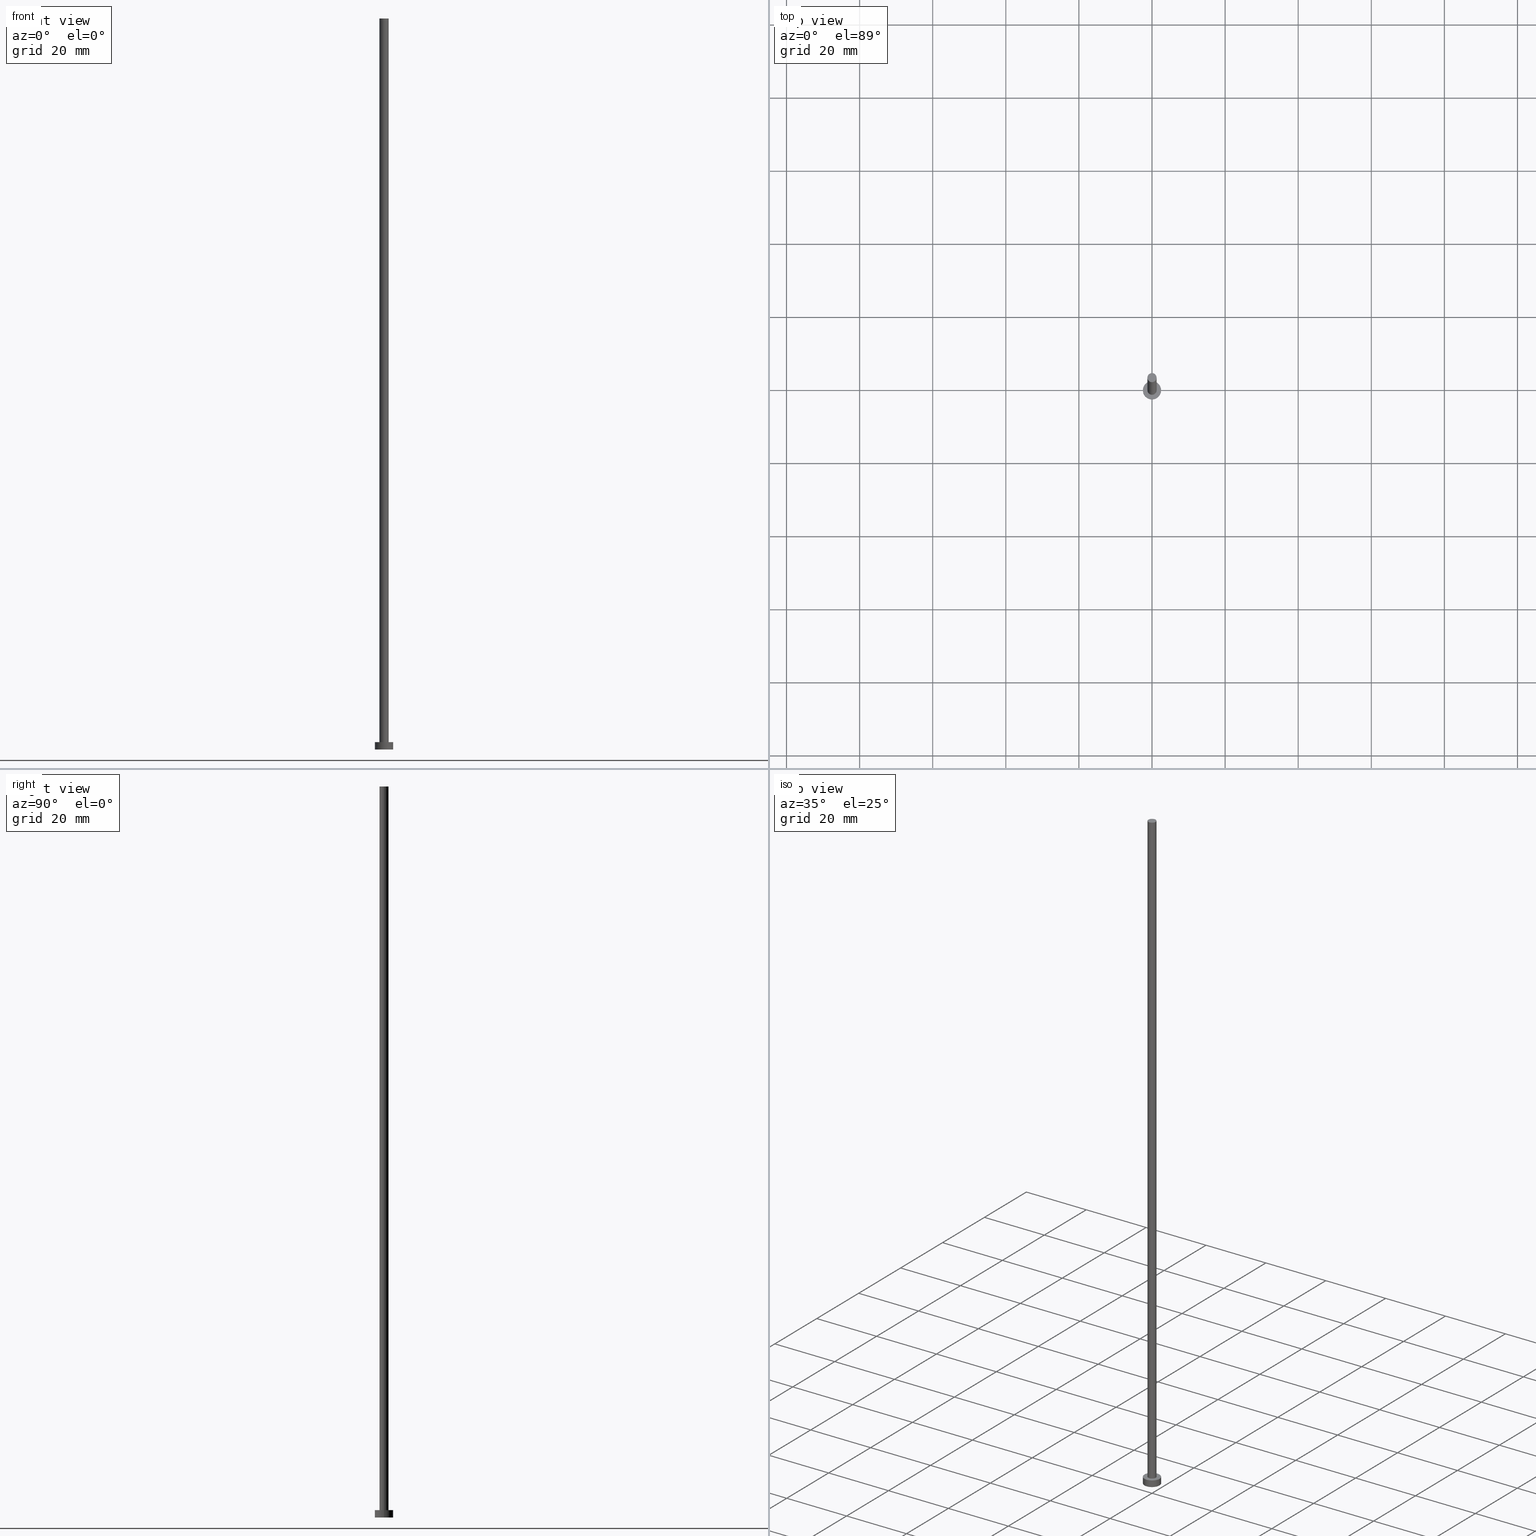
[diagram: canonical four-view strip — front | top / right | iso, engineering-drawing reading convention]
A machine part, canonical four-view strip (front | top / right | iso — engineering-drawing reading convention). The complete STEP part file that produces these views, byte-faithful:
ISO-10303-21;
HEADER;
FILE_DESCRIPTION (( 'STEP AP203' ),
    '1' );
FILE_NAME ('91fc.STEP',
    '2023-02-12T12:49:01',
    ( '' ),
    ( '' ),
    'SwSTEP 2.0',
    'SolidWorks 2019',
    '' );
FILE_SCHEMA (( 'CONFIG_CONTROL_DESIGN' ));
ENDSEC;

DATA;
#1 = FACE_OUTER_BOUND ( 'NONE', #244, .T. ) ;
#2 = DIRECTION ( 'NONE',  ( -0.000000000000000000, -0.000000000000000000, -1.000000000000000000 ) ) ;
#3 = EDGE_CURVE ( 'NONE', #64, #211, #72, .T. ) ;
#4 = LOCAL_TIME ( 13, 49, 1.000000000000000000, #207 ) ;
#5 = ORIENTED_EDGE ( 'NONE', *, *, #141, .T. ) ;
#6 = ORIENTED_EDGE ( 'NONE', *, *, #215, .T. ) ;
#7 = CC_DESIGN_PERSON_AND_ORGANIZATION_ASSIGNMENT ( #137, #113, ( #219 ) ) ;
#8 = COORDINATED_UNIVERSAL_TIME_OFFSET ( 1, 0, .AHEAD. ) ;
#9 = CIRCLE ( 'NONE', #143, 2.500000000000000000 ) ;
#10 = COORDINATED_UNIVERSAL_TIME_OFFSET ( 1, 0, .AHEAD. ) ;
#11 = ORIENTED_EDGE ( 'NONE', *, *, #119, .T. ) ;
#12 = DIRECTION ( 'NONE',  ( 0.000000000000000000, 0.000000000000000000, 1.000000000000000000 ) ) ;
#13 = APPLICATION_PROTOCOL_DEFINITION ( 'international standard', 'config_control_design', 1994, #56 ) ;
#14 = DIRECTION ( 'NONE',  ( 1.000000000000000000, 0.000000000000000000, 0.000000000000000000 ) ) ;
#15 = CC_DESIGN_PERSON_AND_ORGANIZATION_ASSIGNMENT ( #200, #115, ( #219 ) ) ;
#16 = DIRECTION ( 'NONE',  ( 0.000000000000000000, 0.000000000000000000, 1.000000000000000000 ) ) ;
#17 = DATE_TIME_ROLE ( 'creation_date' ) ;
#18 = PERSON_AND_ORGANIZATION ( #166, #79 ) ;
#19 = APPROVAL ( #48, 'NEUR�EN�' ) ;
#20 = AXIS2_PLACEMENT_3D ( 'NONE', #153, #192, #40 ) ;
#21 = ORIENTED_EDGE ( 'NONE', *, *, #39, .T. ) ;
#22 = AXIS2_PLACEMENT_3D ( 'NONE', #67, #198, #26 ) ;
#23 = EDGE_CURVE ( 'NONE', #211, #202, #217, .T. ) ;
#24 = ORIENTED_EDGE ( 'NONE', *, *, #3, .T. ) ;
#25 = CARTESIAN_POINT ( 'NONE',  ( 1.250000000000000000, 1.530808498934191571E-16, 200.0000000000000000 ) ) ;
#26 = DIRECTION ( 'NONE',  ( 1.000000000000000000, 0.000000000000000000, 0.000000000000000000 ) ) ;
#27 = AXIS2_PLACEMENT_3D ( 'NONE', #188, #63, #133 ) ;
#28 = EDGE_LOOP ( 'NONE', ( #174, #81 ) ) ;
#29 = APPLICATION_PROTOCOL_DEFINITION ( 'international standard', 'config_control_design', 1994, #69 ) ;
#30 = ORIENTED_EDGE ( 'NONE', *, *, #128, .F. ) ;
#31 = CARTESIAN_POINT ( 'NONE',  ( 0.000000000000000000, 0.000000000000000000, 2.000000000000000000 ) ) ;
#32 = CALENDAR_DATE ( 2023, 12, 2 ) ;
#33 = CARTESIAN_POINT ( 'NONE',  ( 0.000000000000000000, 0.000000000000000000, 200.0000000000000000 ) ) ;
#34 = LOCAL_TIME ( 13, 49, 1.000000000000000000, #185 ) ;
#35 = MANIFOLD_SOLID_BREP ( 'P�idat vysunut�m3', #156 ) ;
#36 = DATE_AND_TIME ( #205, #34 ) ;
#37 = CALENDAR_DATE ( 2023, 12, 2 ) ;
#38 = AXIS2_PLACEMENT_3D ( 'NONE', #148, #2, #187 ) ;
#39 = EDGE_CURVE ( 'NONE', #161, #58, #71, .T. ) ;
#40 = DIRECTION ( 'NONE',  ( -1.000000000000000000, 0.000000000000000000, 0.000000000000000000 ) ) ;
#41 = FACE_BOUND ( 'NONE', #28, .T. ) ;
#42 = CC_DESIGN_DATE_AND_TIME_ASSIGNMENT ( #230, #168, ( #157 ) ) ;
#43 = FACE_OUTER_BOUND ( 'NONE', #80, .T. ) ;
#44 = CARTESIAN_POINT ( 'NONE',  ( 2.500000000000000000, 3.061616997868383141E-16, 0.000000000000000000 ) ) ;
#45 = CC_DESIGN_APPROVAL ( #197, ( #157 ) ) ;
#46 = FACE_OUTER_BOUND ( 'NONE', #112, .T. ) ;
#47 = ORIENTED_EDGE ( 'NONE', *, *, #23, .F. ) ;
#48 = APPROVAL_STATUS ( 'not_yet_approved' ) ;
#49 = CYLINDRICAL_SURFACE ( 'NONE', #234, 1.250000000000000000 ) ;
#50 = CC_DESIGN_PERSON_AND_ORGANIZATION_ASSIGNMENT ( #165, #104, ( #97 ) ) ;
#51 = CALENDAR_DATE ( 2023, 12, 2 ) ;
#52 = LOCAL_TIME ( 13, 49, 1.000000000000000000, #251 ) ;
#53 = APPROVAL ( #142, 'NEUR�EN�' ) ;
#54 = CC_DESIGN_SECURITY_CLASSIFICATION ( #157, ( #219 ) ) ;
#55 = VERTEX_POINT ( 'NONE', #178 ) ;
#56 = APPLICATION_CONTEXT ( 'configuration controlled 3d designs of mechanical parts and assemblies' ) ;
#57 = AXIS2_PLACEMENT_3D ( 'NONE', #170, #255, #110 ) ;
#58 = VERTEX_POINT ( 'NONE', #125 ) ;
#59 = ORIENTED_EDGE ( 'NONE', *, *, #23, .T. ) ;
#60 = EDGE_LOOP ( 'NONE', ( #208, #47 ) ) ;
#61 = CARTESIAN_POINT ( 'NONE',  ( 0.000000000000000000, 0.000000000000000000, 2.000000000000000000 ) ) ;
#62 = DIRECTION ( 'NONE',  ( 0.000000000000000000, 0.000000000000000000, 1.000000000000000000 ) ) ;
#63 = DIRECTION ( 'NONE',  ( 0.000000000000000000, 0.000000000000000000, 1.000000000000000000 ) ) ;
#64 = VERTEX_POINT ( 'NONE', #86 ) ;
#65 = LINE ( 'NONE', #25, #196 ) ;
#66 = DIRECTION ( 'NONE',  ( 1.000000000000000000, 0.000000000000000000, 0.000000000000000000 ) ) ;
#67 = CARTESIAN_POINT ( 'NONE',  ( 0.000000000000000000, 0.000000000000000000, 0.000000000000000000 ) ) ;
#68 = DIRECTION ( 'NONE',  ( 1.000000000000000000, 0.000000000000000000, 0.000000000000000000 ) ) ;
#69 = APPLICATION_CONTEXT ( 'configuration controlled 3d designs of mechanical parts and assemblies' ) ;
#70 = CALENDAR_DATE ( 2023, 12, 2 ) ;
#71 = CIRCLE ( 'NONE', #57, 1.250000000000000000 ) ;
#72 = LINE ( 'NONE', #91, #132 ) ;
#73 = SECURITY_CLASSIFICATION_LEVEL ( 'unclassified' ) ;
#74 = UNCERTAINTY_MEASURE_WITH_UNIT (LENGTH_MEASURE( 1.000000000000000082E-05 ), #160, 'distance_accuracy_value', 'NONE');
#75 = EDGE_CURVE ( 'NONE', #64, #135, #9, .T. ) ;
#76 = CARTESIAN_POINT ( 'NONE',  ( 0.000000000000000000, 0.000000000000000000, 0.000000000000000000 ) ) ;
#77 = CARTESIAN_POINT ( 'NONE',  ( -1.250000000000000000, 0.000000000000000000, 200.0000000000000000 ) ) ;
#78 = ORIENTED_EDGE ( 'NONE', *, *, #99, .T. ) ;
#79 = ORGANIZATION ( 'NEUR�EN�', 'NEUR�EN�', '' ) ;
#80 = EDGE_LOOP ( 'NONE', ( #180, #24, #59, #95 ) ) ;
#81 = ORIENTED_EDGE ( 'NONE', *, *, #134, .F. ) ;
#82 = ORIENTED_EDGE ( 'NONE', *, *, #134, .T. ) ;
#83 = DATE_AND_TIME ( #32, #171 ) ;
#84 = CC_DESIGN_DATE_AND_TIME_ASSIGNMENT ( #83, #17, ( #97 ) ) ;
#85 = ORIENTED_EDGE ( 'NONE', *, *, #75, .T. ) ;
#86 = CARTESIAN_POINT ( 'NONE',  ( 2.500000000000000000, 3.061616997868383141E-16, 2.000000000000000000 ) ) ;
#87 = APPROVAL_ROLE ( '' ) ;
#88 = APPROVAL_DATE_TIME ( #36, #53 ) ;
#89 = AXIS2_PLACEMENT_3D ( 'NONE', #31, #16, #68 ) ;
#90 = VECTOR ( 'NONE', #181, 1000.000000000000000 ) ;
#91 = CARTESIAN_POINT ( 'NONE',  ( 2.500000000000000000, 3.061616997868383141E-16, 2.000000000000000000 ) ) ;
#92 = EDGE_CURVE ( 'NONE', #55, #151, #237, .T. ) ;
#93 = ORIENTED_EDGE ( 'NONE', *, *, #128, .T. ) ;
#94 = AXIS2_PLACEMENT_3D ( 'NONE', #109, #235, #253 ) ;
#95 = ORIENTED_EDGE ( 'NONE', *, *, #215, .F. ) ;
#96 = CARTESIAN_POINT ( 'NONE',  ( 1.250000000000000000, 1.530808498934191571E-16, 2.000000000000000000 ) ) ;
#97 = PRODUCT_DEFINITION ( 'NEZN�M�', '', #219, #227 ) ;
#98 = PLANE ( 'NONE',  #122 ) ;
#99 = EDGE_CURVE ( 'NONE', #58, #151, #65, .T. ) ;
#100 = CARTESIAN_POINT ( 'NONE',  ( -1.250000000000000000, 0.000000000000000000, 200.0000000000000000 ) ) ;
#101 = ORIENTED_EDGE ( 'NONE', *, *, #39, .F. ) ;
#102 = CARTESIAN_POINT ( 'NONE',  ( 0.000000000000000000, 0.000000000000000000, 2.000000000000000000 ) ) ;
#103 = AXIS2_PLACEMENT_3D ( 'NONE', #61, #223, #116 ) ;
#104 = PERSON_AND_ORGANIZATION_ROLE ( 'creator' ) ;
#105 = DIRECTION ( 'NONE',  ( -0.000000000000000000, -0.000000000000000000, -1.000000000000000000 ) ) ;
#106 = AXIS2_PLACEMENT_3D ( 'NONE', #76, #248, #190 ) ;
#107 = CC_DESIGN_APPROVAL ( #19, ( #219 ) ) ;
#108 = CYLINDRICAL_SURFACE ( 'NONE', #94, 2.500000000000000000 ) ;
#109 = CARTESIAN_POINT ( 'NONE',  ( 0.000000000000000000, 0.000000000000000000, 2.000000000000000000 ) ) ;
#110 = DIRECTION ( 'NONE',  ( 1.000000000000000000, 0.000000000000000000, 0.000000000000000000 ) ) ;
#111 = CARTESIAN_POINT ( 'NONE',  ( -2.500000000000000000, 0.000000000000000000, 2.000000000000000000 ) ) ;
#112 = EDGE_LOOP ( 'NONE', ( #131, #78, #82, #194 ) ) ;
#113 = PERSON_AND_ORGANIZATION_ROLE ( 'creator' ) ;
#114 = DIRECTION ( 'NONE',  ( 1.000000000000000000, 0.000000000000000000, 0.000000000000000000 ) ) ;
#115 = PERSON_AND_ORGANIZATION_ROLE ( 'design_supplier' ) ;
#116 = DIRECTION ( 'NONE',  ( 1.000000000000000000, 0.000000000000000000, -0.000000000000000000 ) ) ;
#117 = CIRCLE ( 'NONE', #177, 2.500000000000000000 ) ;
#118 = APPROVAL_ROLE ( '' ) ;
#119 = EDGE_CURVE ( 'NONE', #161, #55, #140, .T. ) ;
#120 = SHAPE_DEFINITION_REPRESENTATION ( #247, #221 ) ;
#121 = PERSON_AND_ORGANIZATION ( #166, #79 ) ;
#122 = AXIS2_PLACEMENT_3D ( 'NONE', #250, #212, #175 ) ;
#123 = LOCAL_TIME ( 13, 49, 1.000000000000000000, #8 ) ;
#124 = AXIS2_PLACEMENT_3D ( 'NONE', #102, #241, #14 ) ;
#125 = CARTESIAN_POINT ( 'NONE',  ( 1.250000000000000000, 1.530808498934191571E-16, 200.0000000000000000 ) ) ;
#126 = PLANE ( 'NONE',  #103 ) ;
#127 = DIRECTION ( 'NONE',  ( 1.000000000000000000, 0.000000000000000000, 0.000000000000000000 ) ) ;
#128 = EDGE_CURVE ( 'NONE', #135, #64, #117, .T. ) ;
#129 = FACE_OUTER_BOUND ( 'NONE', #216, .T. ) ;
#130 = DIRECTION ( 'NONE',  ( 1.000000000000000000, 0.000000000000000000, -0.000000000000000000 ) ) ;
#131 = ORIENTED_EDGE ( 'NONE', *, *, #199, .F. ) ;
#132 = VECTOR ( 'NONE', #233, 1000.000000000000000 ) ;
#133 = DIRECTION ( 'NONE',  ( 1.000000000000000000, 0.000000000000000000, 0.000000000000000000 ) ) ;
#134 = EDGE_CURVE ( 'NONE', #151, #55, #164, .T. ) ;
#135 = VERTEX_POINT ( 'NONE', #228 ) ;
#136 =( NAMED_UNIT ( * ) SI_UNIT ( $, .STERADIAN. ) SOLID_ANGLE_UNIT ( ) );
#137 = PERSON_AND_ORGANIZATION ( #166, #79 ) ;
#138 = PERSON_AND_ORGANIZATION ( #166, #79 ) ;
#139 = APPROVAL_PERSON_ORGANIZATION ( #18, #197, #210 ) ;
#140 = LINE ( 'NONE', #100, #90 ) ;
#141 = EDGE_CURVE ( 'NONE', #202, #211, #150, .T. ) ;
#142 = APPROVAL_STATUS ( 'not_yet_approved' ) ;
#143 = AXIS2_PLACEMENT_3D ( 'NONE', #242, #158, #114 ) ;
#144 = VECTOR ( 'NONE', #193, 1000.000000000000000 ) ;
#145 = APPROVAL_STATUS ( 'not_yet_approved' ) ;
#146 = DIRECTION ( 'NONE',  ( -1.000000000000000000, 0.000000000000000000, 0.000000000000000000 ) ) ;
#147 = ADVANCED_FACE ( 'NONE', ( #179 ), #209, .T. ) ;
#148 = CARTESIAN_POINT ( 'NONE',  ( 0.000000000000000000, 0.000000000000000000, 2.000000000000000000 ) ) ;
#149 = PRODUCT_RELATED_PRODUCT_CATEGORY ( 'detail', '', ( #203 ) ) ;
#150 = CIRCLE ( 'NONE', #106, 2.500000000000000000 ) ;
#151 = VERTEX_POINT ( 'NONE', #96 ) ;
#152 = CIRCLE ( 'NONE', #27, 1.250000000000000000 ) ;
#153 = CARTESIAN_POINT ( 'NONE',  ( 0.000000000000000000, 0.000000000000000000, 200.0000000000000000 ) ) ;
#154 = ORIENTED_EDGE ( 'NONE', *, *, #3, .F. ) ;
#155 = ORIENTED_EDGE ( 'NONE', *, *, #92, .T. ) ;
#156 = CLOSED_SHELL ( 'NONE', ( #173, #167, #147, #169, #162, #186, #206 ) ) ;
#157 = SECURITY_CLASSIFICATION ( '', '', #73 ) ;
#158 = DIRECTION ( 'NONE',  ( 0.000000000000000000, 0.000000000000000000, 1.000000000000000000 ) ) ;
#159 =( NAMED_UNIT ( * ) PLANE_ANGLE_UNIT ( ) SI_UNIT ( $, .RADIAN. ) );
#160 =( LENGTH_UNIT ( ) NAMED_UNIT ( * ) SI_UNIT ( .MILLI., .METRE. ) );
#161 = VERTEX_POINT ( 'NONE', #77 ) ;
#162 = ADVANCED_FACE ( 'NONE', ( #254 ), #98, .F. ) ;
#163 = DIRECTION ( 'NONE',  ( -0.000000000000000000, -0.000000000000000000, -1.000000000000000000 ) ) ;
#164 = CIRCLE ( 'NONE', #89, 1.250000000000000000 ) ;
#165 = PERSON_AND_ORGANIZATION ( #166, #79 ) ;
#166 = PERSON ( 'NEUR�EN�', 'NEUR�EN�', 'NEUR�EN�', ('NEUR�EN�'), ('NEUR�EN�'), ('NEUR�EN�') ) ;
#167 = ADVANCED_FACE ( 'NONE', ( #43 ), #108, .T. ) ;
#168 = DATE_TIME_ROLE ( 'classification_date' ) ;
#169 = ADVANCED_FACE ( 'NONE', ( #41, #1 ), #126, .T. ) ;
#170 = CARTESIAN_POINT ( 'NONE',  ( 0.000000000000000000, 0.000000000000000000, 200.0000000000000000 ) ) ;
#171 = LOCAL_TIME ( 13, 49, 1.000000000000000000, #10 ) ;
#172 = CC_DESIGN_PERSON_AND_ORGANIZATION_ASSIGNMENT ( #218, #183, ( #203 ) ) ;
#173 = ADVANCED_FACE ( 'NONE', ( #46 ), #49, .T. ) ;
#174 = ORIENTED_EDGE ( 'NONE', *, *, #92, .F. ) ;
#175 = DIRECTION ( 'NONE',  ( 1.000000000000000000, 0.000000000000000000, -0.000000000000000000 ) ) ;
#176 = CARTESIAN_POINT ( 'NONE',  ( -2.500000000000000000, 0.000000000000000000, 0.000000000000000000 ) ) ;
#177 = AXIS2_PLACEMENT_3D ( 'NONE', #245, #12, #66 ) ;
#178 = CARTESIAN_POINT ( 'NONE',  ( -1.250000000000000000, 0.000000000000000000, 2.000000000000000000 ) ) ;
#179 = FACE_OUTER_BOUND ( 'NONE', #238, .T. ) ;
#180 = ORIENTED_EDGE ( 'NONE', *, *, #75, .F. ) ;
#181 = DIRECTION ( 'NONE',  ( -0.000000000000000000, -0.000000000000000000, -1.000000000000000000 ) ) ;
#182 = PERSON_AND_ORGANIZATION ( #166, #79 ) ;
#183 = PERSON_AND_ORGANIZATION_ROLE ( 'design_owner' ) ;
#184 = DATE_AND_TIME ( #37, #52 ) ;
#185 = COORDINATED_UNIVERSAL_TIME_OFFSET ( 1, 0, .AHEAD. ) ;
#186 = ADVANCED_FACE ( 'NONE', ( #252 ), #225, .T. ) ;
#187 = DIRECTION ( 'NONE',  ( -1.000000000000000000, 0.000000000000000000, 0.000000000000000000 ) ) ;
#188 = CARTESIAN_POINT ( 'NONE',  ( 0.000000000000000000, 0.000000000000000000, 200.0000000000000000 ) ) ;
#189 = DIRECTION ( 'NONE',  ( 0.000000000000000000, 0.000000000000000000, 1.000000000000000000 ) ) ;
#190 = DIRECTION ( 'NONE',  ( 1.000000000000000000, 0.000000000000000000, 0.000000000000000000 ) ) ;
#191 = PLANE ( 'NONE',  #249 ) ;
#192 = DIRECTION ( 'NONE',  ( -0.000000000000000000, -0.000000000000000000, -1.000000000000000000 ) ) ;
#193 = DIRECTION ( 'NONE',  ( -0.000000000000000000, -0.000000000000000000, -1.000000000000000000 ) ) ;
#194 = ORIENTED_EDGE ( 'NONE', *, *, #119, .F. ) ;
#195 = ORIENTED_EDGE ( 'NONE', *, *, #199, .T. ) ;
#196 = VECTOR ( 'NONE', #163, 1000.000000000000000 ) ;
#197 = APPROVAL ( #145, 'NEUR�EN�' ) ;
#198 = DIRECTION ( 'NONE',  ( 0.000000000000000000, 0.000000000000000000, 1.000000000000000000 ) ) ;
#199 = EDGE_CURVE ( 'NONE', #58, #161, #152, .T. ) ;
#200 = PERSON_AND_ORGANIZATION ( #166, #79 ) ;
#201 =( GEOMETRIC_REPRESENTATION_CONTEXT ( 3 ) GLOBAL_UNCERTAINTY_ASSIGNED_CONTEXT ( ( #74 ) ) GLOBAL_UNIT_ASSIGNED_CONTEXT ( ( #160, #159, #136 ) ) REPRESENTATION_CONTEXT ( 'NONE', 'WORKASPACE' ) );
#202 = VERTEX_POINT ( 'NONE', #176 ) ;
#203 = PRODUCT ( '91fc', '91fc', '', ( #243 ) ) ;
#204 = APPROVAL_PERSON_ORGANIZATION ( #138, #19, #87 ) ;
#205 = CALENDAR_DATE ( 2023, 12, 2 ) ;
#206 = ADVANCED_FACE ( 'NONE', ( #129 ), #191, .T. ) ;
#207 = COORDINATED_UNIVERSAL_TIME_OFFSET ( 1, 0, .AHEAD. ) ;
#208 = ORIENTED_EDGE ( 'NONE', *, *, #141, .F. ) ;
#209 = CYLINDRICAL_SURFACE ( 'NONE', #38, 2.500000000000000000 ) ;
#210 = APPROVAL_ROLE ( '' ) ;
#211 = VERTEX_POINT ( 'NONE', #44 ) ;
#212 = DIRECTION ( 'NONE',  ( 0.000000000000000000, 0.000000000000000000, 1.000000000000000000 ) ) ;
#213 = LINE ( 'NONE', #111, #144 ) ;
#214 = ORIENTED_EDGE ( 'NONE', *, *, #99, .F. ) ;
#215 = EDGE_CURVE ( 'NONE', #135, #202, #213, .T. ) ;
#216 = EDGE_LOOP ( 'NONE', ( #21, #195 ) ) ;
#217 = CIRCLE ( 'NONE', #224, 2.500000000000000000 ) ;
#218 = PERSON_AND_ORGANIZATION ( #166, #79 ) ;
#219 = PRODUCT_DEFINITION_FORMATION_WITH_SPECIFIED_SOURCE ( 'LIBOVOLN�', '', #203, .NOT_KNOWN. ) ;
#220 = APPROVAL_PERSON_ORGANIZATION ( #182, #53, #118 ) ;
#221 = ADVANCED_BREP_SHAPE_REPRESENTATION ( '91fc', ( #35, #22 ), #201 ) ;
#222 = DATE_AND_TIME ( #70, #123 ) ;
#223 = DIRECTION ( 'NONE',  ( 0.000000000000000000, 0.000000000000000000, 1.000000000000000000 ) ) ;
#224 = AXIS2_PLACEMENT_3D ( 'NONE', #231, #189, #127 ) ;
#225 = CYLINDRICAL_SURFACE ( 'NONE', #20, 1.250000000000000000 ) ;
#226 = PERSON_AND_ORGANIZATION_ROLE ( 'classification_officer' ) ;
#227 = DESIGN_CONTEXT ( 'detailed design', #69, 'design' ) ;
#228 = CARTESIAN_POINT ( 'NONE',  ( -2.500000000000000000, 0.000000000000000000, 2.000000000000000000 ) ) ;
#229 = APPROVAL_DATE_TIME ( #184, #197 ) ;
#230 = DATE_AND_TIME ( #51, #4 ) ;
#231 = CARTESIAN_POINT ( 'NONE',  ( 0.000000000000000000, 0.000000000000000000, 0.000000000000000000 ) ) ;
#232 = EDGE_LOOP ( 'NONE', ( #214, #101, #11, #155 ) ) ;
#233 = DIRECTION ( 'NONE',  ( -0.000000000000000000, -0.000000000000000000, -1.000000000000000000 ) ) ;
#234 = AXIS2_PLACEMENT_3D ( 'NONE', #33, #105, #146 ) ;
#235 = DIRECTION ( 'NONE',  ( -0.000000000000000000, -0.000000000000000000, -1.000000000000000000 ) ) ;
#236 = CARTESIAN_POINT ( 'NONE',  ( 0.000000000000000000, 0.000000000000000000, 200.0000000000000000 ) ) ;
#237 = CIRCLE ( 'NONE', #124, 1.250000000000000000 ) ;
#238 = EDGE_LOOP ( 'NONE', ( #154, #30, #6, #5 ) ) ;
#239 = CC_DESIGN_APPROVAL ( #53, ( #97 ) ) ;
#240 = APPROVAL_DATE_TIME ( #222, #19 ) ;
#241 = DIRECTION ( 'NONE',  ( 0.000000000000000000, 0.000000000000000000, 1.000000000000000000 ) ) ;
#242 = CARTESIAN_POINT ( 'NONE',  ( 0.000000000000000000, 0.000000000000000000, 2.000000000000000000 ) ) ;
#243 = MECHANICAL_CONTEXT ( 'NONE', #56, 'mechanical' ) ;
#244 = EDGE_LOOP ( 'NONE', ( #93, #85 ) ) ;
#245 = CARTESIAN_POINT ( 'NONE',  ( 0.000000000000000000, 0.000000000000000000, 2.000000000000000000 ) ) ;
#246 = CC_DESIGN_PERSON_AND_ORGANIZATION_ASSIGNMENT ( #121, #226, ( #157 ) ) ;
#247 = PRODUCT_DEFINITION_SHAPE ( 'NONE', 'NONE',  #97 ) ;
#248 = DIRECTION ( 'NONE',  ( 0.000000000000000000, 0.000000000000000000, 1.000000000000000000 ) ) ;
#249 = AXIS2_PLACEMENT_3D ( 'NONE', #236, #62, #130 ) ;
#250 = CARTESIAN_POINT ( 'NONE',  ( 0.000000000000000000, 0.000000000000000000, 0.000000000000000000 ) ) ;
#251 = COORDINATED_UNIVERSAL_TIME_OFFSET ( 1, 0, .AHEAD. ) ;
#252 = FACE_OUTER_BOUND ( 'NONE', #232, .T. ) ;
#253 = DIRECTION ( 'NONE',  ( -1.000000000000000000, 0.000000000000000000, 0.000000000000000000 ) ) ;
#254 = FACE_OUTER_BOUND ( 'NONE', #60, .T. ) ;
#255 = DIRECTION ( 'NONE',  ( 0.000000000000000000, 0.000000000000000000, 1.000000000000000000 ) ) ;
ENDSEC;
END-ISO-10303-21;
